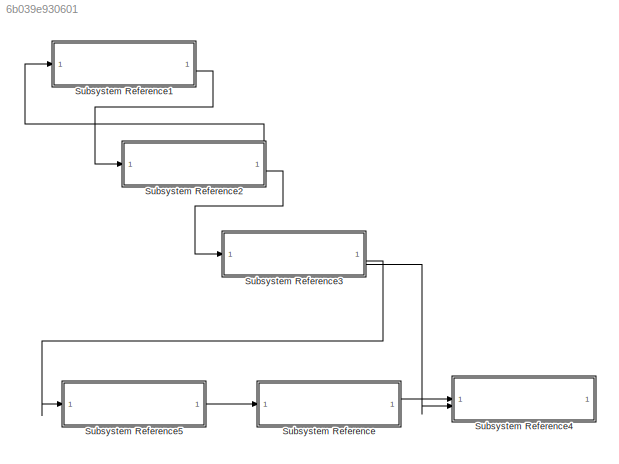
MODEL slx_6b039e930601
KIND model
CONFIG AbsTol = auto
CONFIG EnableMultiTasking = off
CONFIG FixedStep = auto
CONFIG MaxStep = auto
CONFIG MinStep = auto
CONFIG RelTol = 1e-3
CONFIG SampleTimeConstraint = Unconstrained
CONFIG SolverName = VariableStepAuto
CONFIG StartTime = 0.0
CONFIG StopTime = 10.0
BLOCK [SubSystem] Subsystem Reference
  ReferencedSubsystem = decoder
BLOCK [SubSystem] Subsystem Reference1
  ReferencedSubsystem = Pendulum
BLOCK [SubSystem] Subsystem Reference2
  ReferencedSubsystem = Motor_circuit
BLOCK [SubSystem] Subsystem Reference3
  ReferencedSubsystem = Tank_system
BLOCK [SubSystem] Subsystem Reference4
  ReferencedSubsystem = Dissipator_circuit
BLOCK [SubSystem] Subsystem Reference5
  ReferencedSubsystem = encoder
LINE Subsystem Reference1:2 -> Subsystem Reference2:1
LINE Subsystem Reference2:1 -> Subsystem Reference1:1
LINE Subsystem Reference2:2 -> Subsystem Reference3:1
LINE Subsystem Reference3:2 -> Subsystem Reference5:1
LINE Subsystem Reference3:3 -> Subsystem Reference4:2
LINE Subsystem Reference5:1 -> Subsystem Reference:1
LINE Subsystem Reference:1 -> Subsystem Reference4:1
